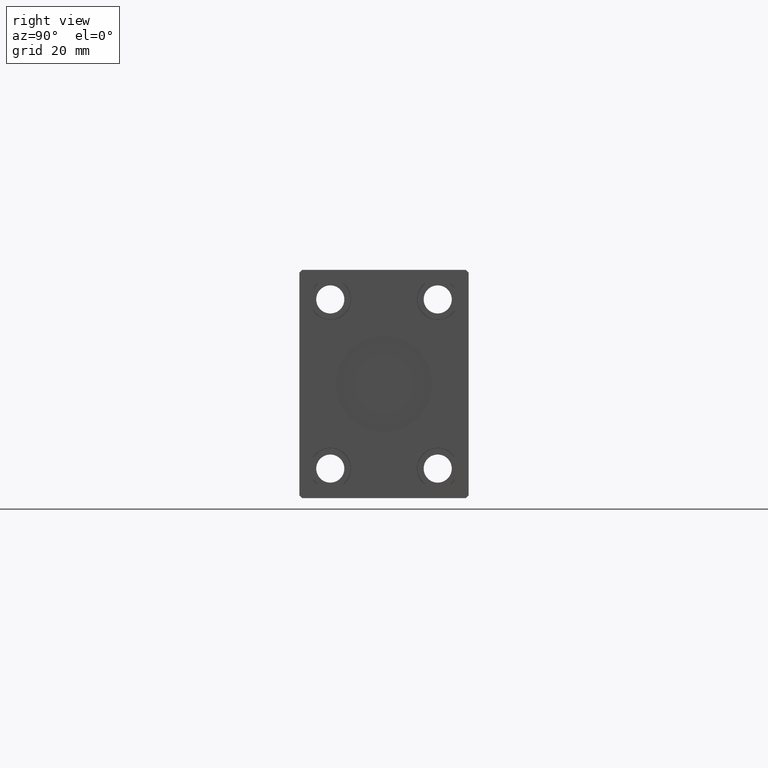
[diagram: clean part render]
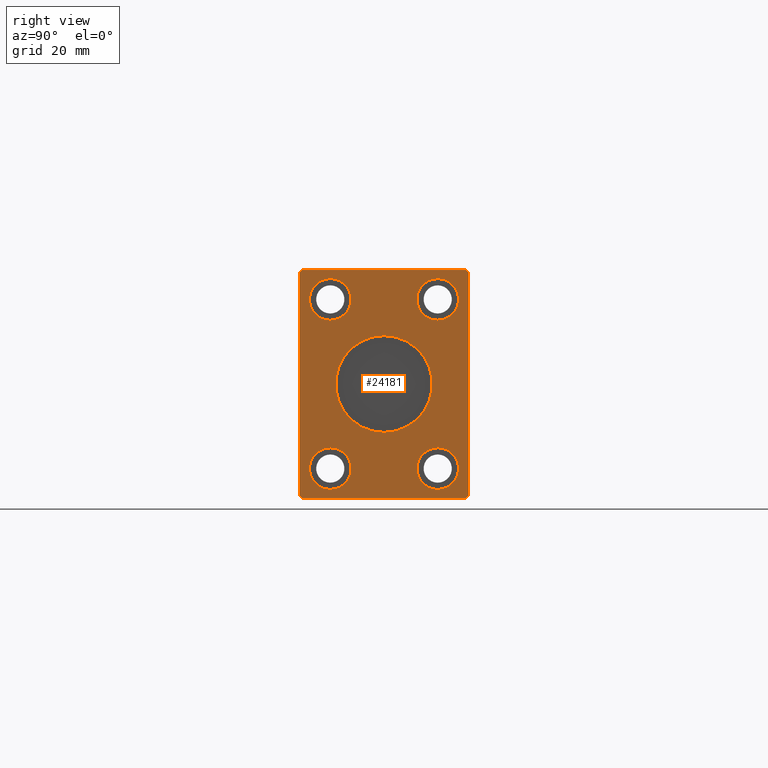
[diagram: same view with one face highlighted and labeled with its STEP entity id]
A machine part, right view. The second image highlights one B-rep face of the part: STEP entity #24181.
In plain terms, the highlighted planar face has unit normal (1, 0, 0).
Its self-contained STEP definition (entity closure, byte-faithful):
#244 = VERTEX_POINT ( 'NONE', #31432 ) ;
#311 = ORIENTED_EDGE ( 'NONE', *, *, #9307, .T. ) ;
#708 = VERTEX_POINT ( 'NONE', #24000 ) ;
#807 = VERTEX_POINT ( 'NONE', #18409 ) ;
#1097 = VERTEX_POINT ( 'NONE', #41311 ) ;
#1414 = EDGE_LOOP ( 'NONE', ( #5474, #18779 ) ) ;
#1423 = CARTESIAN_POINT ( 'NONE',  ( 251.0000000000000000, 20.00000000000000355, 31.50000000000001421 ) ) ;
#1589 = CIRCLE ( 'NONE', #31749, 7.750000000000000000 ) ;
#1645 = LINE ( 'NONE', #37937, #35187 ) ;
#1919 = LINE ( 'NONE', #40786, #4877 ) ;
#2125 = DIRECTION ( 'NONE',  ( 0.000000000000000000, 0.000000000000000000, 1.000000000000000000 ) ) ;
#2393 = DIRECTION ( 'NONE',  ( 0.000000000000000000, 0.000000000000000000, 1.000000000000000000 ) ) ;
#2471 = VECTOR ( 'NONE', #34455, 1000.000000000000114 ) ;
#2868 = DIRECTION ( 'NONE',  ( 0.000000000000000000, 0.000000000000000000, -1.000000000000000000 ) ) ;
#3043 = CARTESIAN_POINT ( 'NONE',  ( 251.0000000000000000, -19.99999999999999645, 23.75000000000001421 ) ) ;
#3136 = VERTEX_POINT ( 'NONE', #6238 ) ;
#3514 = ORIENTED_EDGE ( 'NONE', *, *, #8665, .T. ) ;
#3575 = EDGE_LOOP ( 'NONE', ( #311, #38169, #29485, #3514, #14246, #13971, #15152, #21745 ) ) ;
#4261 = CARTESIAN_POINT ( 'NONE',  ( 251.0000000000000000, -19.99999999999999645, -31.49999999999998579 ) ) ;
#4430 = EDGE_CURVE ( 'NONE', #3136, #4916, #1919, .T. ) ;
#4731 = CIRCLE ( 'NONE', #6791, 7.750000000000000000 ) ;
#4827 = CARTESIAN_POINT ( 'NONE',  ( 251.0000000000000000, -31.50000000000000000, -41.50000000000000711 ) ) ;
#4877 = VECTOR ( 'NONE', #28118, 1000.000000000000000 ) ;
#4916 = VERTEX_POINT ( 'NONE', #12733 ) ;
#5078 = DIRECTION ( 'NONE',  ( 0.000000000000000000, 0.7071067811865462405, 0.7071067811865489050 ) ) ;
#5320 = AXIS2_PLACEMENT_3D ( 'NONE', #11244, #31207, #35060 ) ;
#5474 = ORIENTED_EDGE ( 'NONE', *, *, #30187, .T. ) ;
#5588 = CARTESIAN_POINT ( 'NONE',  ( 251.0000000000000000, -31.50000000000000000, 41.49999999999999289 ) ) ;
#5877 = FACE_BOUND ( 'NONE', #15622, .T. ) ;
#6238 = CARTESIAN_POINT ( 'NONE',  ( 251.0000000000000000, -30.50000000000000711, -42.50000000000000711 ) ) ;
#6310 = AXIS2_PLACEMENT_3D ( 'NONE', #33932, #11181, #37380 ) ;
#6619 = ORIENTED_EDGE ( 'NONE', *, *, #29301, .F. ) ;
#6791 = AXIS2_PLACEMENT_3D ( 'NONE', #4261, #13941, #11358 ) ;
#6854 = DIRECTION ( 'NONE',  ( 0.000000000000000000, -0.7071067811865462405, -0.7071067811865489050 ) ) ;
#6975 = EDGE_CURVE ( 'NONE', #37332, #24276, #41936, .T. ) ;
#7001 = DIRECTION ( 'NONE',  ( 0.000000000000000000, 0.000000000000000000, 1.000000000000000000 ) ) ;
#7040 = VECTOR ( 'NONE', #7503, 1000.000000000000000 ) ;
#7063 = LINE ( 'NONE', #20593, #41613 ) ;
#7100 = EDGE_CURVE ( 'NONE', #38491, #39417, #17219, .T. ) ;
#7157 = VERTEX_POINT ( 'NONE', #40614 ) ;
#7207 = VERTEX_POINT ( 'NONE', #28792 ) ;
#7503 = DIRECTION ( 'NONE',  ( 0.000000000000000000, 0.000000000000000000, 1.000000000000000000 ) ) ;
#7831 = EDGE_LOOP ( 'NONE', ( #6619, #21772 ) ) ;
#7974 = CARTESIAN_POINT ( 'NONE',  ( 251.0000000000000000, 31.50000000000001421, 41.49999999999999289 ) ) ;
#8089 = DIRECTION ( 'NONE',  ( 1.000000000000000000, -0.000000000000000000, -0.000000000000000000 ) ) ;
#8170 = EDGE_LOOP ( 'NONE', ( #14433, #22583 ) ) ;
#8342 = VECTOR ( 'NONE', #17643, 1000.000000000000000 ) ;
#8508 = DIRECTION ( 'NONE',  ( 0.000000000000000000, 0.000000000000000000, -1.000000000000000000 ) ) ;
#8529 = EDGE_CURVE ( 'NONE', #7207, #807, #35800, .T. ) ;
#8606 = LINE ( 'NONE', #18277, #33769 ) ;
#8665 = EDGE_CURVE ( 'NONE', #21431, #7157, #42503, .T. ) ;
#9031 = DIRECTION ( 'NONE',  ( 0.000000000000000000, -0.7071067811865474617, 0.7071067811865474617 ) ) ;
#9090 = CARTESIAN_POINT ( 'NONE',  ( 251.0000000000000000, 20.00000000000000355, -31.49999999999998579 ) ) ;
#9110 = DIRECTION ( 'NONE',  ( 0.000000000000000000, 0.000000000000000000, -1.000000000000000000 ) ) ;
#9233 = AXIS2_PLACEMENT_3D ( 'NONE', #21268, #25323, #2125 ) ;
#9307 = EDGE_CURVE ( 'NONE', #37421, #38491, #8606, .T. ) ;
#9959 = FACE_OUTER_BOUND ( 'NONE', #3575, .T. ) ;
#10082 = EDGE_CURVE ( 'NONE', #26949, #37421, #36293, .T. ) ;
#10466 = EDGE_CURVE ( 'NONE', #4916, #26949, #1645, .T. ) ;
#10619 = CIRCLE ( 'NONE', #9233, 7.750000000000000000 ) ;
#11181 = DIRECTION ( 'NONE',  ( 1.000000000000000000, 0.000000000000000000, 0.000000000000000000 ) ) ;
#11244 = CARTESIAN_POINT ( 'NONE',  ( 251.0000000000000000, 20.00000000000000355, 31.50000000000001421 ) ) ;
#11358 = DIRECTION ( 'NONE',  ( 0.000000000000000000, 0.000000000000000000, -1.000000000000000000 ) ) ;
#11576 = EDGE_CURVE ( 'NONE', #1097, #708, #1589, .T. ) ;
#12663 = CARTESIAN_POINT ( 'NONE',  ( 251.0000000000000000, -30.50000000000000355, 42.49999999999999289 ) ) ;
#12733 = CARTESIAN_POINT ( 'NONE',  ( 251.0000000000000000, 30.50000000000001776, -42.50000000000000711 ) ) ;
#13010 = CARTESIAN_POINT ( 'NONE',  ( 251.0000000000000000, 20.00000000000000355, -39.24999999999998579 ) ) ;
#13941 = DIRECTION ( 'NONE',  ( 1.000000000000000000, -0.000000000000000000, -0.000000000000000000 ) ) ;
#13971 = ORIENTED_EDGE ( 'NONE', *, *, #4430, .T. ) ;
#14246 = ORIENTED_EDGE ( 'NONE', *, *, #32496, .T. ) ;
#14333 = CIRCLE ( 'NONE', #32866, 7.750000000000000000 ) ;
#14433 = ORIENTED_EDGE ( 'NONE', *, *, #11576, .F. ) ;
#14725 = EDGE_CURVE ( 'NONE', #34638, #37066, #10619, .T. ) ;
#14895 = DIRECTION ( 'NONE',  ( -1.000000000000000000, -0.000000000000000000, -0.000000000000000000 ) ) ;
#15152 = ORIENTED_EDGE ( 'NONE', *, *, #10466, .T. ) ;
#15622 = EDGE_LOOP ( 'NONE', ( #20749, #21384 ) ) ;
#15660 = ORIENTED_EDGE ( 'NONE', *, *, #8529, .F. ) ;
#15919 = DIRECTION ( 'NONE',  ( -1.000000000000000000, -0.000000000000000000, -0.000000000000000000 ) ) ;
#17016 = AXIS2_PLACEMENT_3D ( 'NONE', #9090, #14895, #38300 ) ;
#17097 = CARTESIAN_POINT ( 'NONE',  ( 251.0000000000000000, -19.99999999999999645, 31.50000000000001421 ) ) ;
#17219 = LINE ( 'NONE', #27510, #8342 ) ;
#17552 = CIRCLE ( 'NONE', #21681, 7.750000000000000000 ) ;
#17586 = DIRECTION ( 'NONE',  ( 1.000000000000000000, 0.000000000000000000, 0.000000000000000000 ) ) ;
#17643 = DIRECTION ( 'NONE',  ( 0.000000000000000000, -1.000000000000000000, 0.000000000000000000 ) ) ;
#18277 = CARTESIAN_POINT ( 'NONE',  ( 251.0000000000000000, 31.50000000000001421, 41.49999999999999289 ) ) ;
#18409 = CARTESIAN_POINT ( 'NONE',  ( 251.0000000000000000, 2.204364238465235428E-15, 18.00000000000000000 ) ) ;
#18779 = ORIENTED_EDGE ( 'NONE', *, *, #32009, .T. ) ;
#18989 = FACE_BOUND ( 'NONE', #7831, .T. ) ;
#19624 = FACE_BOUND ( 'NONE', #1414, .T. ) ;
#19906 = CARTESIAN_POINT ( 'NONE',  ( 251.0000000000000000, 31.50000000000001421, -41.50000000000000711 ) ) ;
#20593 = CARTESIAN_POINT ( 'NONE',  ( 251.0000000000000000, -30.50000000000000355, 42.49999999999999289 ) ) ;
#20749 = ORIENTED_EDGE ( 'NONE', *, *, #14725, .T. ) ;
#21103 = CARTESIAN_POINT ( 'NONE',  ( 251.0000000000000000, 20.00000000000000355, 23.75000000000001421 ) ) ;
#21268 = CARTESIAN_POINT ( 'NONE',  ( 251.0000000000000000, -19.99999999999999645, 31.50000000000001421 ) ) ;
#21384 = ORIENTED_EDGE ( 'NONE', *, *, #41427, .T. ) ;
#21431 = VERTEX_POINT ( 'NONE', #5588 ) ;
#21592 = LINE ( 'NONE', #4827, #2471 ) ;
#21681 = AXIS2_PLACEMENT_3D ( 'NONE', #31801, #15919, #2393 ) ;
#21745 = ORIENTED_EDGE ( 'NONE', *, *, #10082, .T. ) ;
#21772 = ORIENTED_EDGE ( 'NONE', *, *, #6975, .F. ) ;
#22336 = DIRECTION ( 'NONE',  ( 0.000000000000000000, 0.000000000000000000, -1.000000000000000000 ) ) ;
#22583 = ORIENTED_EDGE ( 'NONE', *, *, #41239, .F. ) ;
#23052 = DIRECTION ( 'NONE',  ( 1.000000000000000000, 0.000000000000000000, 0.000000000000000000 ) ) ;
#23332 = DIRECTION ( 'NONE',  ( -1.000000000000000000, -0.000000000000000000, -0.000000000000000000 ) ) ;
#23424 = AXIS2_PLACEMENT_3D ( 'NONE', #1423, #8089, #8508 ) ;
#23624 = CARTESIAN_POINT ( 'NONE',  ( 251.0000000000000000, 31.50000000000001421, -41.50000000000000711 ) ) ;
#24000 = CARTESIAN_POINT ( 'NONE',  ( 251.0000000000000000, -19.99999999999999645, -23.74999999999998579 ) ) ;
#24181 = ADVANCED_FACE ( 'NONE', ( #39160, #5877, #19624, #9959, #26262, #18989 ), #38736, .T. ) ;
#24276 = VERTEX_POINT ( 'NONE', #21103 ) ;
#24526 = CIRCLE ( 'NONE', #5320, 7.750000000000000000 ) ;
#25323 = DIRECTION ( 'NONE',  ( -1.000000000000000000, -0.000000000000000000, -0.000000000000000000 ) ) ;
#25742 = AXIS2_PLACEMENT_3D ( 'NONE', #39373, #23052, #9110 ) ;
#26262 = FACE_BOUND ( 'NONE', #8170, .T. ) ;
#26949 = VERTEX_POINT ( 'NONE', #19906 ) ;
#27510 = CARTESIAN_POINT ( 'NONE',  ( 251.0000000000000000, 30.50000000000001421, 42.49999999999999289 ) ) ;
#28118 = DIRECTION ( 'NONE',  ( 0.000000000000000000, 1.000000000000000000, 0.000000000000000000 ) ) ;
#28792 = CARTESIAN_POINT ( 'NONE',  ( 251.0000000000000000, 0.000000000000000000, -18.00000000000000000 ) ) ;
#29301 = EDGE_CURVE ( 'NONE', #24276, #37332, #24526, .T. ) ;
#29434 = AXIS2_PLACEMENT_3D ( 'NONE', #33897, #17586, #30686 ) ;
#29485 = ORIENTED_EDGE ( 'NONE', *, *, #34892, .T. ) ;
#30187 = EDGE_CURVE ( 'NONE', #31556, #244, #33455, .T. ) ;
#30312 = VECTOR ( 'NONE', #22336, 1000.000000000000000 ) ;
#30686 = DIRECTION ( 'NONE',  ( 0.000000000000000000, 0.000000000000000000, -1.000000000000000000 ) ) ;
#31207 = DIRECTION ( 'NONE',  ( 1.000000000000000000, -0.000000000000000000, -0.000000000000000000 ) ) ;
#31432 = CARTESIAN_POINT ( 'NONE',  ( 251.0000000000000000, 20.00000000000000355, -23.74999999999998579 ) ) ;
#31556 = VERTEX_POINT ( 'NONE', #13010 ) ;
#31749 = AXIS2_PLACEMENT_3D ( 'NONE', #31857, #41954, #2868 ) ;
#31801 = CARTESIAN_POINT ( 'NONE',  ( 251.0000000000000000, 20.00000000000000355, -31.49999999999998579 ) ) ;
#31857 = CARTESIAN_POINT ( 'NONE',  ( 251.0000000000000000, -19.99999999999999645, -31.49999999999998579 ) ) ;
#32009 = EDGE_CURVE ( 'NONE', #244, #31556, #17552, .T. ) ;
#32316 = CARTESIAN_POINT ( 'NONE',  ( 251.0000000000000000, 20.00000000000000355, 39.25000000000001421 ) ) ;
#32496 = EDGE_CURVE ( 'NONE', #7157, #3136, #21592, .T. ) ;
#32866 = AXIS2_PLACEMENT_3D ( 'NONE', #17097, #23332, #7001 ) ;
#33455 = CIRCLE ( 'NONE', #17016, 7.750000000000000000 ) ;
#33769 = VECTOR ( 'NONE', #9031, 1000.000000000000114 ) ;
#33822 = EDGE_LOOP ( 'NONE', ( #15660, #40537 ) ) ;
#33897 = CARTESIAN_POINT ( 'NONE',  ( 251.0000000000000000, 0.000000000000000000, 0.000000000000000000 ) ) ;
#33932 = CARTESIAN_POINT ( 'NONE',  ( 251.0000000000000000, 0.000000000000000000, 0.000000000000000000 ) ) ;
#34455 = DIRECTION ( 'NONE',  ( 0.000000000000000000, 0.7071067811865451302, -0.7071067811865500152 ) ) ;
#34638 = VERTEX_POINT ( 'NONE', #3043 ) ;
#34892 = EDGE_CURVE ( 'NONE', #39417, #21431, #7063, .T. ) ;
#35060 = DIRECTION ( 'NONE',  ( 0.000000000000000000, 0.000000000000000000, -1.000000000000000000 ) ) ;
#35187 = VECTOR ( 'NONE', #5078, 999.9999999999998863 ) ;
#35800 = CIRCLE ( 'NONE', #6310, 18.00000000000000000 ) ;
#36232 = CARTESIAN_POINT ( 'NONE',  ( 251.0000000000000000, -19.99999999999999645, 39.25000000000001421 ) ) ;
#36293 = LINE ( 'NONE', #23624, #7040 ) ;
#37066 = VERTEX_POINT ( 'NONE', #36232 ) ;
#37332 = VERTEX_POINT ( 'NONE', #32316 ) ;
#37380 = DIRECTION ( 'NONE',  ( 0.000000000000000000, 0.000000000000000000, -1.000000000000000000 ) ) ;
#37421 = VERTEX_POINT ( 'NONE', #7974 ) ;
#37937 = CARTESIAN_POINT ( 'NONE',  ( 251.0000000000000000, 30.50000000000001776, -42.50000000000000711 ) ) ;
#38038 = CARTESIAN_POINT ( 'NONE',  ( 251.0000000000000000, 30.50000000000001421, 42.49999999999999289 ) ) ;
#38169 = ORIENTED_EDGE ( 'NONE', *, *, #7100, .T. ) ;
#38300 = DIRECTION ( 'NONE',  ( 0.000000000000000000, 0.000000000000000000, 1.000000000000000000 ) ) ;
#38491 = VERTEX_POINT ( 'NONE', #38038 ) ;
#38736 = PLANE ( 'NONE',  #25742 ) ;
#39072 = CARTESIAN_POINT ( 'NONE',  ( 251.0000000000000000, -31.50000000000000000, 41.49999999999999289 ) ) ;
#39160 = FACE_BOUND ( 'NONE', #33822, .T. ) ;
#39373 = CARTESIAN_POINT ( 'NONE',  ( 251.0000000000000000, 0.000000000000000000, 0.000000000000000000 ) ) ;
#39417 = VERTEX_POINT ( 'NONE', #12663 ) ;
#40537 = ORIENTED_EDGE ( 'NONE', *, *, #41339, .F. ) ;
#40614 = CARTESIAN_POINT ( 'NONE',  ( 251.0000000000000000, -31.50000000000000000, -41.50000000000000711 ) ) ;
#40786 = CARTESIAN_POINT ( 'NONE',  ( 251.0000000000000000, -30.50000000000000711, -42.50000000000000711 ) ) ;
#41239 = EDGE_CURVE ( 'NONE', #708, #1097, #4731, .T. ) ;
#41311 = CARTESIAN_POINT ( 'NONE',  ( 251.0000000000000000, -19.99999999999999645, -39.24999999999998579 ) ) ;
#41339 = EDGE_CURVE ( 'NONE', #807, #7207, #41768, .T. ) ;
#41427 = EDGE_CURVE ( 'NONE', #37066, #34638, #14333, .T. ) ;
#41613 = VECTOR ( 'NONE', #6854, 999.9999999999998863 ) ;
#41768 = CIRCLE ( 'NONE', #29434, 18.00000000000000000 ) ;
#41936 = CIRCLE ( 'NONE', #23424, 7.750000000000000000 ) ;
#41954 = DIRECTION ( 'NONE',  ( 1.000000000000000000, -0.000000000000000000, -0.000000000000000000 ) ) ;
#42503 = LINE ( 'NONE', #39072, #30312 ) ;